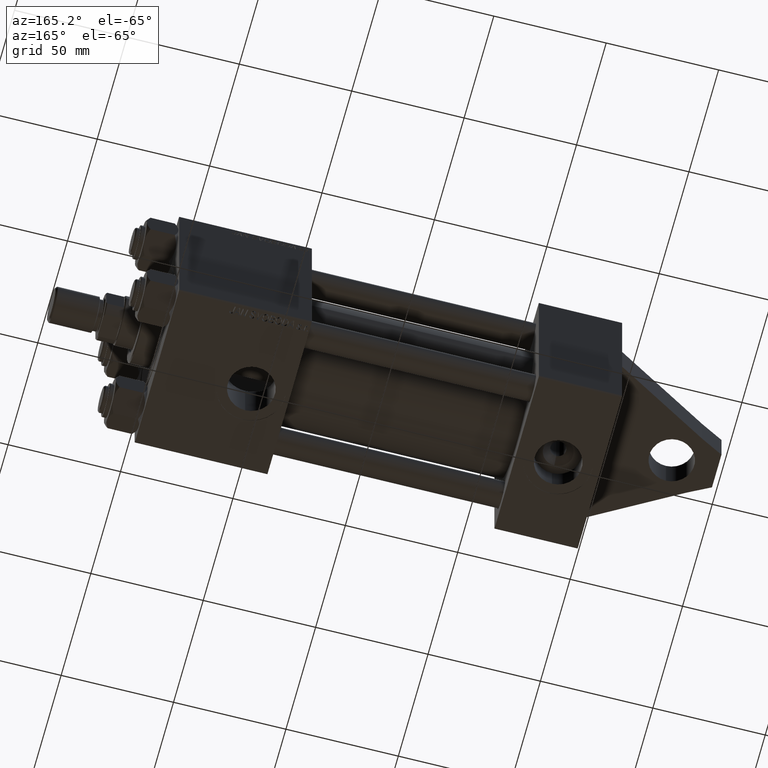
[diagram: clean part render]
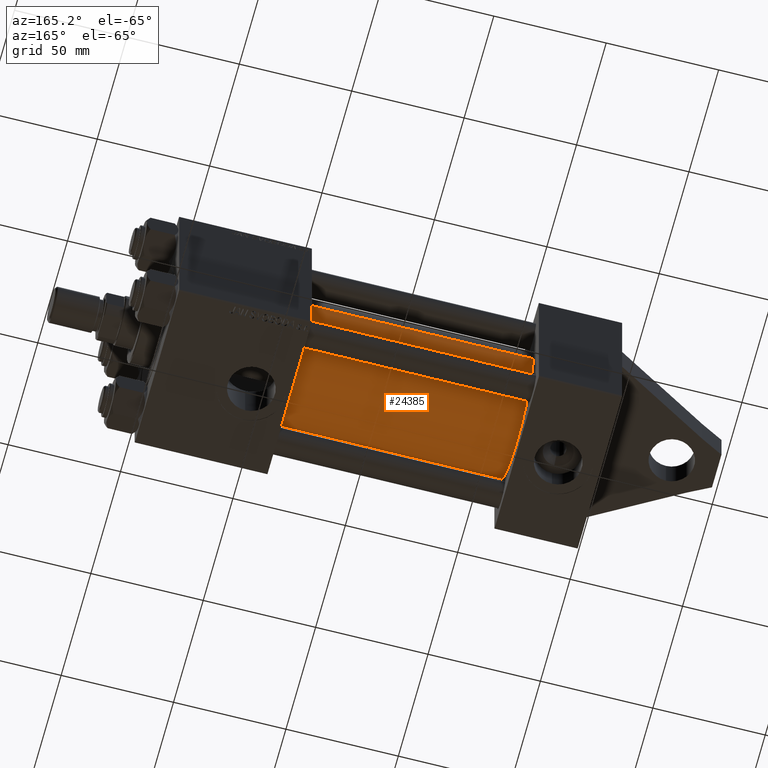
[diagram: same view with one face highlighted and labeled with its STEP entity id]
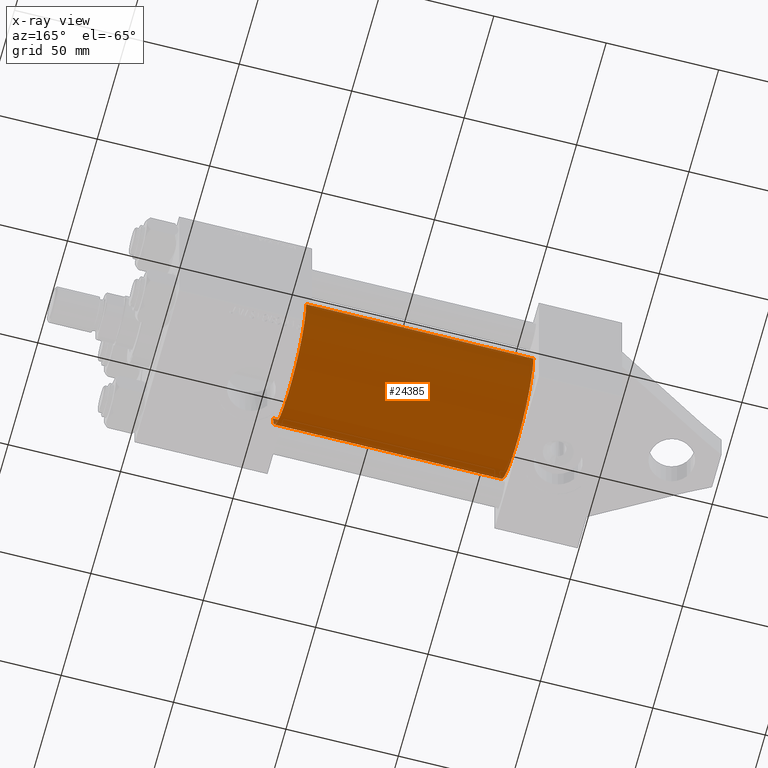
[diagram: x-ray of the same camera — body ghosted, the highlighted face saturated]
A machine part, auxiliary view. The second image highlights one B-rep face of the part: STEP entity #24385.
The next image is the same camera in x-ray: the body ghosted, the highlighted face saturated — about 0% of this face is hidden behind the body in this view.
In plain terms, the highlighted cylindrical surface (partial cylindrical patch) has radius 28 mm, axis along (-1, -0, 0).
Its self-contained STEP definition (entity closure, byte-faithful):
#2971 = AXIS2_PLACEMENT_3D ( 'NONE', #30897, #34883, #45453 ) ;
#5950 = CIRCLE ( 'NONE', #2971, 28.00000000000000000 ) ;
#6927 = ORIENTED_EDGE ( 'NONE', *, *, #34410, .T. ) ;
#7033 = CARTESIAN_POINT ( 'NONE',  ( 37.00000000000000711, 8.269258236473784371E-16, -28.00000000000000000 ) ) ;
#10494 = CARTESIAN_POINT ( 'NONE',  ( 37.00000000000000711, -2.602085213965210642E-15, 28.00000000000000000 ) ) ;
#11975 = AXIS2_PLACEMENT_3D ( 'NONE', #13737, #38211, #38671 ) ;
#12140 = VERTEX_POINT ( 'NONE', #7033 ) ;
#12442 = VERTEX_POINT ( 'NONE', #10494 ) ;
#13737 = CARTESIAN_POINT ( 'NONE',  ( 138.0000000000000000, -2.602085213965210642E-15, 0.000000000000000000 ) ) ;
#14324 = VERTEX_POINT ( 'NONE', #15261 ) ;
#14650 = VERTEX_POINT ( 'NONE', #23046 ) ;
#15104 = EDGE_CURVE ( 'NONE', #14324, #12140, #41113, .T. ) ;
#15261 = CARTESIAN_POINT ( 'NONE',  ( 138.0000000000000000, 8.269258236473784371E-16, -28.00000000000000000 ) ) ;
#17008 = DIRECTION ( 'NONE',  ( -1.000000000000000000, -0.000000000000000000, -0.000000000000000000 ) ) ;
#21239 = CARTESIAN_POINT ( 'NONE',  ( 138.0000000000000000, -2.602085213965210642E-15, 0.000000000000000000 ) ) ;
#21305 = ORIENTED_EDGE ( 'NONE', *, *, #39089, .T. ) ;
#23046 = CARTESIAN_POINT ( 'NONE',  ( 138.0000000000000000, -2.602085213965210642E-15, 28.00000000000000000 ) ) ;
#24133 = ORIENTED_EDGE ( 'NONE', *, *, #40164, .F. ) ;
#24385 = ADVANCED_FACE ( 'NONE', ( #24766 ), #27827, .T. ) ;
#24766 = FACE_OUTER_BOUND ( 'NONE', #26040, .T. ) ;
#26040 = EDGE_LOOP ( 'NONE', ( #34527, #24133, #6927, #21305 ) ) ;
#27827 = CYLINDRICAL_SURFACE ( 'NONE', #29158, 28.00000000000000000 ) ;
#29158 = AXIS2_PLACEMENT_3D ( 'NONE', #21239, #17008, #38403 ) ;
#30897 = CARTESIAN_POINT ( 'NONE',  ( 37.00000000000000711, -2.602085213965210642E-15, 0.000000000000000000 ) ) ;
#33143 = CARTESIAN_POINT ( 'NONE',  ( 138.0000000000000000, 8.269258236473784371E-16, -28.00000000000000000 ) ) ;
#33566 = VECTOR ( 'NONE', #41517, 1000.000000000000000 ) ;
#34410 = EDGE_CURVE ( 'NONE', #14650, #12442, #34706, .T. ) ;
#34527 = ORIENTED_EDGE ( 'NONE', *, *, #15104, .F. ) ;
#34706 = LINE ( 'NONE', #41284, #33566 ) ;
#34883 = DIRECTION ( 'NONE',  ( 1.000000000000000000, -0.000000000000000000, 0.000000000000000000 ) ) ;
#38211 = DIRECTION ( 'NONE',  ( 1.000000000000000000, 0.000000000000000000, 0.000000000000000000 ) ) ;
#38403 = DIRECTION ( 'NONE',  ( 0.000000000000000000, 0.000000000000000000, 1.000000000000000000 ) ) ;
#38671 = DIRECTION ( 'NONE',  ( 0.000000000000000000, 0.000000000000000000, -1.000000000000000000 ) ) ;
#39089 = EDGE_CURVE ( 'NONE', #12442, #12140, #5950, .T. ) ;
#40164 = EDGE_CURVE ( 'NONE', #14650, #14324, #43532, .T. ) ;
#40883 = DIRECTION ( 'NONE',  ( -1.000000000000000000, -0.000000000000000000, -0.000000000000000000 ) ) ;
#41113 = LINE ( 'NONE', #33143, #45483 ) ;
#41284 = CARTESIAN_POINT ( 'NONE',  ( 138.0000000000000000, -2.602085213965210642E-15, 28.00000000000000000 ) ) ;
#41517 = DIRECTION ( 'NONE',  ( -1.000000000000000000, -0.000000000000000000, -0.000000000000000000 ) ) ;
#43532 = CIRCLE ( 'NONE', #11975, 28.00000000000000000 ) ;
#45453 = DIRECTION ( 'NONE',  ( 0.000000000000000000, 0.000000000000000000, 1.000000000000000000 ) ) ;
#45483 = VECTOR ( 'NONE', #40883, 1000.000000000000000 ) ;